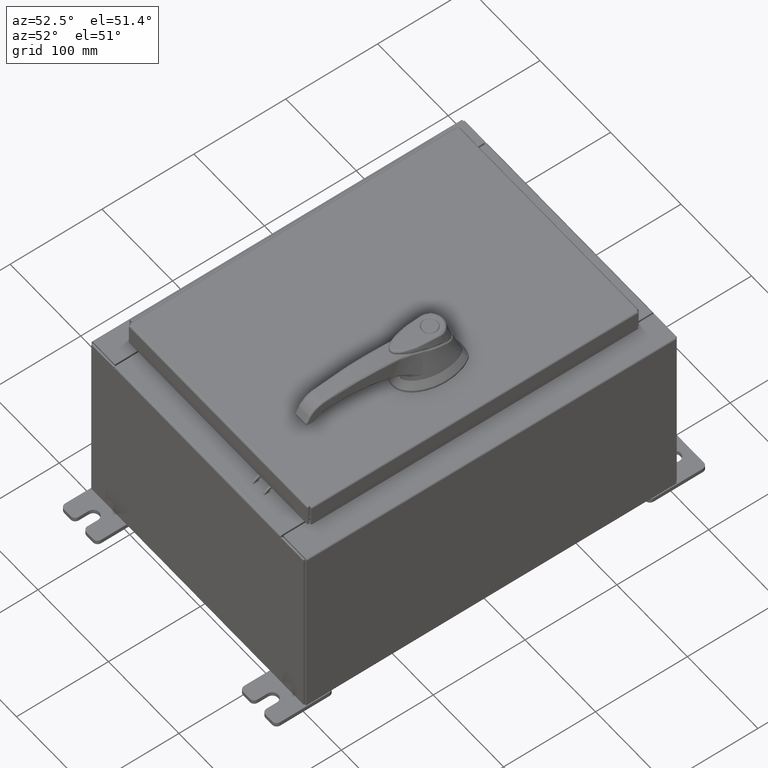
[diagram: clean part render]
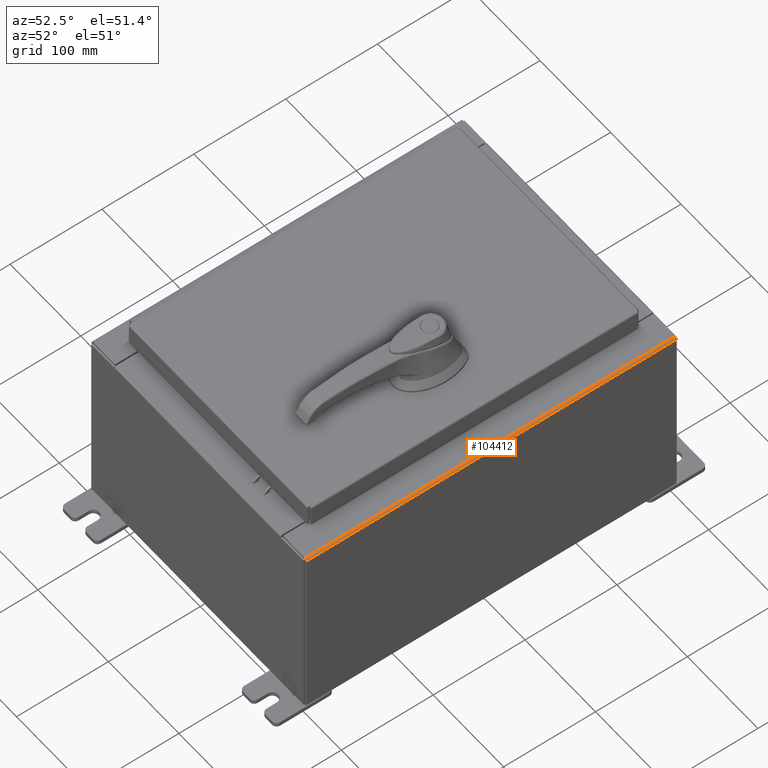
[diagram: same view with one face highlighted and labeled with its STEP entity id]
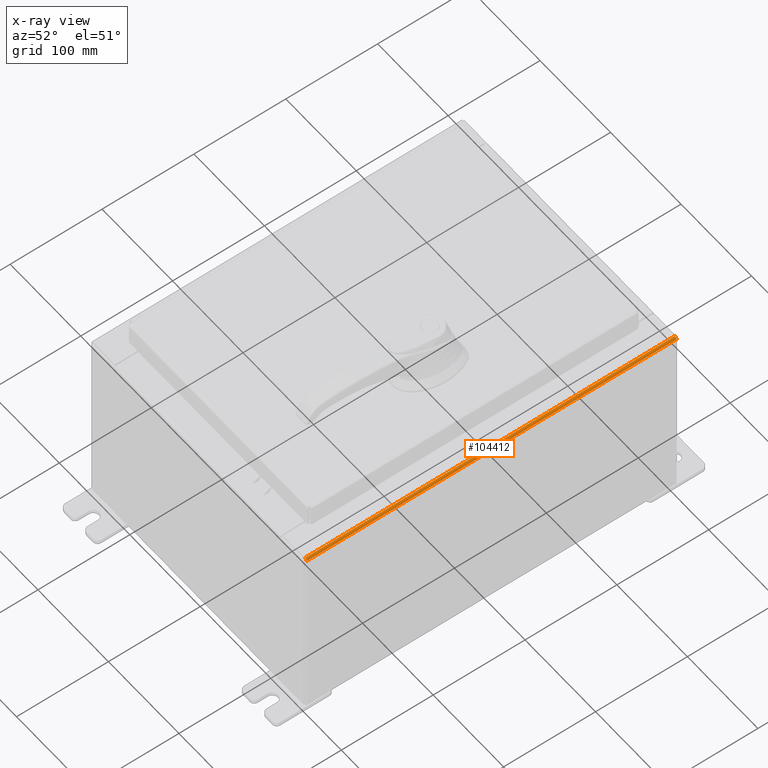
[diagram: x-ray of the same camera — body ghosted, the highlighted face saturated]
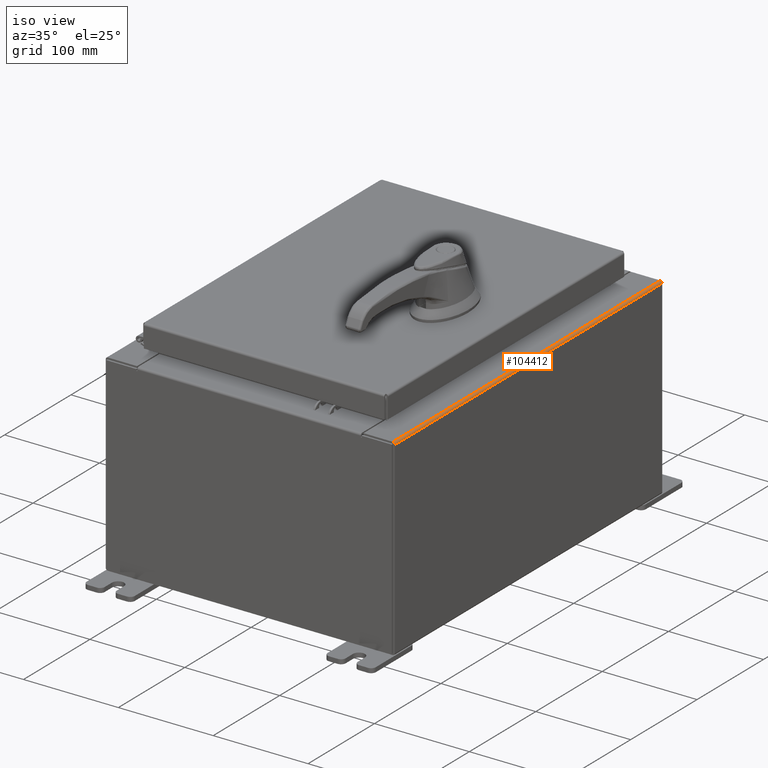
[diagram: same view with one face highlighted and labeled with its STEP entity id]
A machine part, auxiliary view. The second image highlights one B-rep face of the part: STEP entity #104412.
The next image is the same camera in x-ray: the body ghosted, the highlighted face saturated — about 0% of this face is hidden behind the body in this view.
A second angle (iso view) of the same face is appended — the face is thin or edge-on in the first view.
In plain terms, the highlighted cylindrical surface (edge-blend (fillet) strip) has radius 2.2276 mm, axis along (0, 1, 0).
Its self-contained STEP definition (entity closure, byte-faithful):
#4180 = DIRECTION ( 'NONE',  ( 0.0000000000000000000, 0.0000000000000000000, 1.000000000000000000 ) ) ;
#8230 = DIRECTION ( 'NONE',  ( -0.0000000000000000000, -1.000000000000000000, -0.0000000000000000000 ) ) ;
#8240 = DIRECTION ( 'NONE',  ( -0.0000000000000000000, -1.000000000000000000, -0.0000000000000000000 ) ) ;
#10047 = AXIS2_PLACEMENT_3D ( 'NONE', #57553, #8240, #65693 ) ;
#15445 = CARTESIAN_POINT ( 'NONE',  ( 5.912300000000026800, -7.925300000000000900, 7.925300000000000900 ) ) ;
#16090 = CARTESIAN_POINT ( 'NONE',  ( 5.912300000000027600, 7.925300000000000900, 7.925300000000000000 ) ) ;
#18115 = DIRECTION ( 'NONE',  ( 1.245996804407854400E-014, 0.0000000000000000000, 1.000000000000000000 ) ) ;
#23137 = AXIS2_PLACEMENT_3D ( 'NONE', #103174, #53649, #4180 ) ;
#24261 = CIRCLE ( 'NONE', #23137, 0.08770000000000136000 ) ;
#26530 = CARTESIAN_POINT ( 'NONE',  ( 5.912300000000027600, 7.925300000000000900, 7.837599999999999200 ) ) ;
#31599 = AXIS2_PLACEMENT_3D ( 'NONE', #26530, #92215, #18115 ) ;
#33015 = CYLINDRICAL_SURFACE ( 'NONE', #31599, 0.08770000000000136000 ) ;
#35614 = FACE_OUTER_BOUND ( 'NONE', #39537, .T. ) ;
#36738 = EDGE_CURVE ( 'NONE', #72983, #84157, #105265, .T. ) ;
#39537 = EDGE_LOOP ( 'NONE', ( #91296, #71694, #85741, #46073 ) ) ;
#40890 = EDGE_CURVE ( 'NONE', #62560, #72983, #94406, .T. ) ;
#45991 = CARTESIAN_POINT ( 'NONE',  ( 6.000000000000026600, -7.925300000000000900, 7.837599999999998300 ) ) ;
#46073 = ORIENTED_EDGE ( 'NONE', *, *, #36738, .F. ) ;
#52518 = CARTESIAN_POINT ( 'NONE',  ( 6.000000000000029300, 7.925300000000000900, 7.837599999999992100 ) ) ;
#53308 = EDGE_CURVE ( 'NONE', #68092, #62560, #24261, .T. ) ;
#53649 = DIRECTION ( 'NONE',  ( 0.0000000000000000000, 1.000000000000000000, 0.0000000000000000000 ) ) ;
#56779 = DIRECTION ( 'NONE',  ( -6.893992640440775600E-017, -1.000000000000000000, 6.893992640440816300E-017 ) ) ;
#57553 = CARTESIAN_POINT ( 'NONE',  ( 5.912300000000027600, -7.925300000000000900, 7.837599999999999200 ) ) ;
#58286 = EDGE_CURVE ( 'NONE', #68092, #84157, #98532, .T. ) ;
#62560 = VERTEX_POINT ( 'NONE', #52518 ) ;
#65693 = DIRECTION ( 'NONE',  ( 0.0000000000000000000, 0.0000000000000000000, 1.000000000000000000 ) ) ;
#68092 = VERTEX_POINT ( 'NONE', #16090 ) ;
#71694 = ORIENTED_EDGE ( 'NONE', *, *, #53308, .F. ) ;
#72983 = VERTEX_POINT ( 'NONE', #45991 ) ;
#73550 = CARTESIAN_POINT ( 'NONE',  ( 6.000000000000029300, 7.925300000000000900, 7.837599999999992100 ) ) ;
#76302 = VECTOR ( 'NONE', #56779, 39.37007874015748100 ) ;
#84157 = VERTEX_POINT ( 'NONE', #95918 ) ;
#85741 = ORIENTED_EDGE ( 'NONE', *, *, #58286, .T. ) ;
#86588 = VECTOR ( 'NONE', #8230, 39.37007874015748100 ) ;
#91296 = ORIENTED_EDGE ( 'NONE', *, *, #40890, .F. ) ;
#92215 = DIRECTION ( 'NONE',  ( 0.0000000000000000000, 1.000000000000000000, 0.0000000000000000000 ) ) ;
#94406 = LINE ( 'NONE', #73550, #86588 ) ;
#95918 = CARTESIAN_POINT ( 'NONE',  ( 5.912300000000027600, -7.925300000000000900, 7.925300000000000900 ) ) ;
#98532 = LINE ( 'NONE', #15445, #76302 ) ;
#103174 = CARTESIAN_POINT ( 'NONE',  ( 5.912300000000027600, 7.925300000000000900, 7.837599999999999200 ) ) ;
#104412 = ADVANCED_FACE ( 'NONE', ( #35614 ), #33015, .T. ) ;
#105265 = CIRCLE ( 'NONE', #10047, 0.08770000000000136000 ) ;